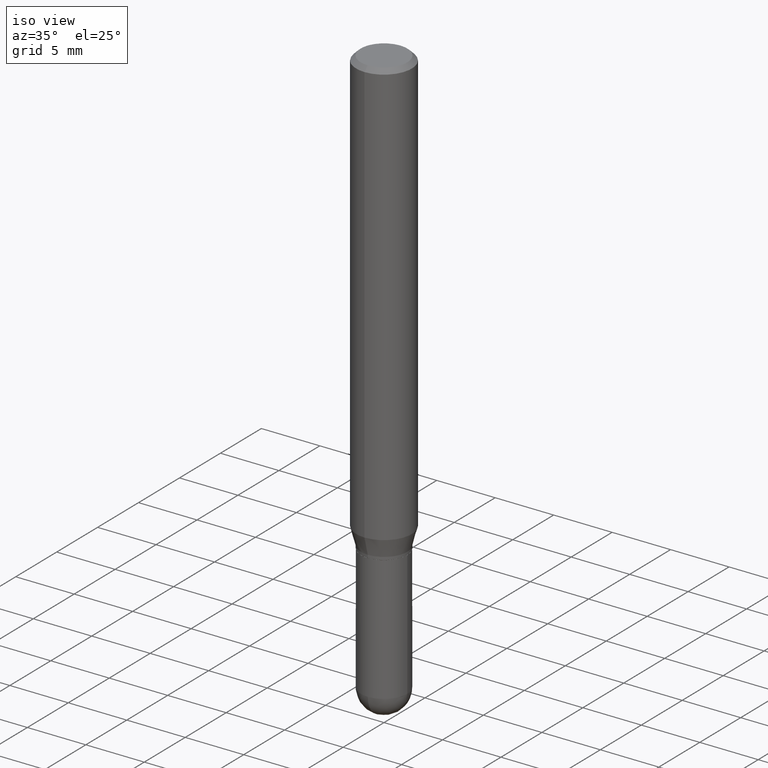
[diagram: clean part render]
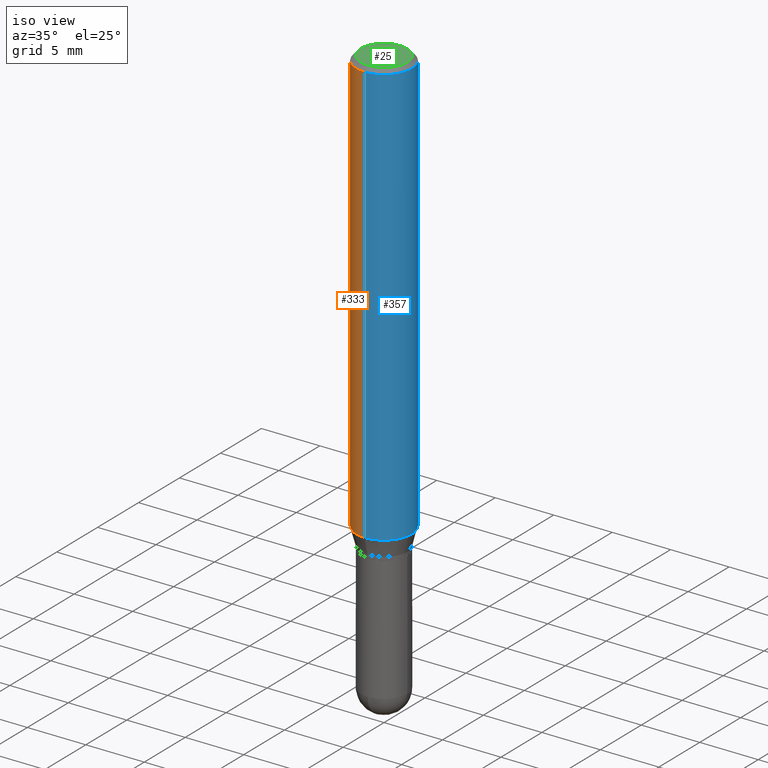
[diagram: same view with three faces highlighted in distinct colors, each labeled with its STEP entity id]
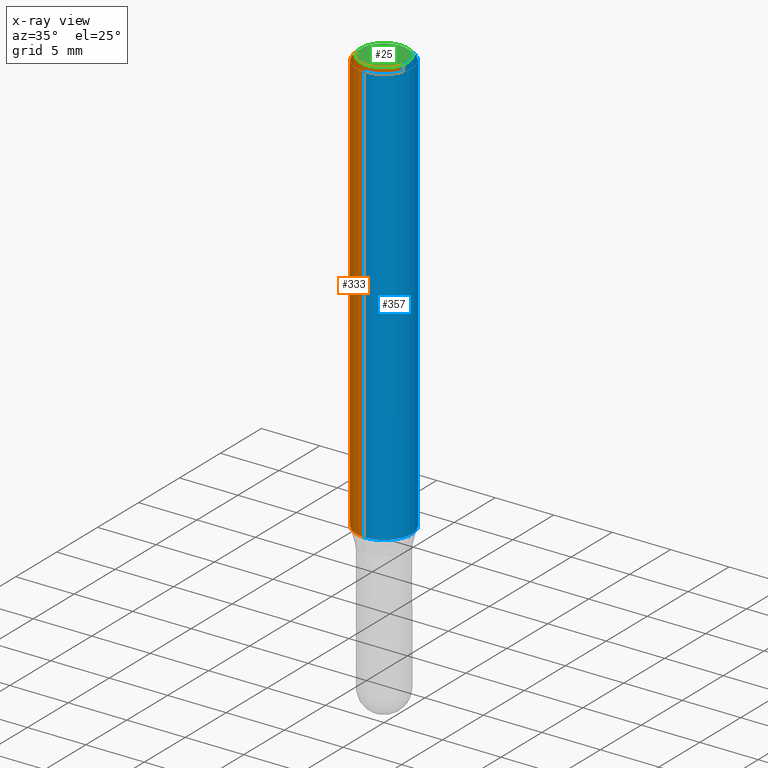
[diagram: x-ray of the same camera — body ghosted, the three highlighted faces saturated]
A machine part, iso view with three faces highlighted in distinct colors.
The next image is the same camera in x-ray (body ghosted, the three faces saturated) — at least one of them is partly hidden behind the body in this view.
Their STEP definitions:

[orange] entity #333 — the highlighted cylindrical surface (edge-blend (fillet) strip) has radius 2.3813 mm, axis along (-0, 0, 1).
#6 = DIRECTION ( 'NONE',  ( -6.982962677686265922E-15, -1.000000000000000000, 2.913971193241880372E-15 ) ) ;
#9 = VERTEX_POINT ( 'NONE', #450 ) ;
#19 = EDGE_CURVE ( 'NONE', #39, #9, #479, .T. ) ;
#22 = CARTESIAN_POINT ( 'NONE',  ( -6.546527510330523012E-16, -0.09375000000000500988, -1.431593404861545515 ) ) ;
#28 = AXIS2_PLACEMENT_3D ( 'NONE', #108, #106, #345 ) ;
#31 = CARTESIAN_POINT ( 'NONE',  ( 3.667533844320509501E-31, -5.238180576981294836E-17, -0.01499999999999997863 ) ) ;
#34 = AXIS2_PLACEMENT_3D ( 'NONE', #379, #186, #6 ) ;
#39 = VERTEX_POINT ( 'NONE', #240 ) ;
#44 = ORIENTED_EDGE ( 'NONE', *, *, #203, .F. ) ;
#64 = DIRECTION ( 'NONE',  ( -2.445022562880343100E-29, 3.492120384654201603E-15, 1.000000000000000000 ) ) ;
#106 = DIRECTION ( 'NONE',  ( -2.445022562880343100E-29, 3.492120384654201603E-15, 1.000000000000000000 ) ) ;
#108 = CARTESIAN_POINT ( 'NONE',  ( 0.000000000000000000, 0.000000000000000000, 0.000000000000000000 ) ) ;
#110 = EDGE_LOOP ( 'NONE', ( #512, #475, #289, #44 ) ) ;
#115 = VERTEX_POINT ( 'NONE', #22 ) ;
#127 = CIRCLE ( 'NONE', #253, 0.09375000000000001388 ) ;
#151 = FACE_OUTER_BOUND ( 'NONE', #110, .T. ) ;
#174 = DIRECTION ( 'NONE',  ( -6.982962677686265922E-15, -1.000000000000000000, 3.483106191921935160E-15 ) ) ;
#183 = VERTEX_POINT ( 'NONE', #493 ) ;
#186 = DIRECTION ( 'NONE',  ( -2.445022562880343100E-29, 3.492120384654201603E-15, 1.000000000000000000 ) ) ;
#196 = CYLINDRICAL_SURFACE ( 'NONE', #28, 0.09375000000000001388 ) ;
#203 = EDGE_CURVE ( 'NONE', #9, #183, #127, .T. ) ;
#234 = CIRCLE ( 'NONE', #34, 0.09375000000000001388 ) ;
#237 = CARTESIAN_POINT ( 'NONE',  ( -6.546527510330875041E-16, -0.09375000000000001388, 3.273862860613314496E-16 ) ) ;
#240 = CARTESIAN_POINT ( 'NONE',  ( 6.661338147751288313E-16, 0.09374999999999500400, -1.431593404861545960 ) ) ;
#241 = EDGE_CURVE ( 'NONE', #39, #115, #234, .T. ) ;
#253 = AXIS2_PLACEMENT_3D ( 'NONE', #31, #64, #174 ) ;
#284 = DIRECTION ( 'NONE',  ( -2.445022562880342820E-29, 3.492120384654201603E-15, 1.000000000000000000 ) ) ;
#285 = DIRECTION ( 'NONE',  ( -2.445022562880342820E-29, 3.492120384654201603E-15, 1.000000000000000000 ) ) ;
#289 = ORIENTED_EDGE ( 'NONE', *, *, #480, .T. ) ;
#291 = CARTESIAN_POINT ( 'NONE',  ( 6.661338147750938256E-16, 0.09375000000000001388, -3.273862860613314496E-16 ) ) ;
#333 = ADVANCED_FACE ( 'NONE', ( #151 ), #196, .T. ) ;
#345 = DIRECTION ( 'NONE',  ( -6.982962677686265922E-15, -1.000000000000000000, 3.492120384654201603E-15 ) ) ;
#379 = CARTESIAN_POINT ( 'NONE',  ( 3.500278175757173363E-29, -4.999296511653519155E-15, -1.431593404861545737 ) ) ;
#436 = VECTOR ( 'NONE', #284, 39.37007874015748143 ) ;
#440 = LINE ( 'NONE', #237, #436 ) ;
#450 = CARTESIAN_POINT ( 'NONE',  ( 6.661338147751291272E-16, 0.09374999999999995837, -0.01500000000000030476 ) ) ;
#475 = ORIENTED_EDGE ( 'NONE', *, *, #241, .T. ) ;
#479 = LINE ( 'NONE', #291, #502 ) ;
#480 = EDGE_CURVE ( 'NONE', #115, #183, #440, .T. ) ;
#493 = CARTESIAN_POINT ( 'NONE',  ( -6.546527510330871097E-16, -0.09375000000000005551, -0.01499999999999965250 ) ) ;
#502 = VECTOR ( 'NONE', #285, 39.37007874015748143 ) ;
#512 = ORIENTED_EDGE ( 'NONE', *, *, #19, .F. ) ;

[blue] entity #357 — the highlighted cylindrical surface (edge-blend (fillet) strip) has radius 2.3813 mm, axis along (-0, 0, 1).
#4 = DIRECTION ( 'NONE',  ( -2.445022562880343100E-29, 3.492120384654201603E-15, 1.000000000000000000 ) ) ;
#9 = VERTEX_POINT ( 'NONE', #450 ) ;
#19 = EDGE_CURVE ( 'NONE', #39, #9, #479, .T. ) ;
#22 = CARTESIAN_POINT ( 'NONE',  ( -6.546527510330523012E-16, -0.09375000000000500988, -1.431593404861545515 ) ) ;
#39 = VERTEX_POINT ( 'NONE', #240 ) ;
#68 = DIRECTION ( 'NONE',  ( -2.445022562880343100E-29, 3.492120384654201603E-15, 1.000000000000000000 ) ) ;
#86 = AXIS2_PLACEMENT_3D ( 'NONE', #230, #68, #193 ) ;
#115 = VERTEX_POINT ( 'NONE', #22 ) ;
#117 = FACE_OUTER_BOUND ( 'NONE', #359, .T. ) ;
#136 = AXIS2_PLACEMENT_3D ( 'NONE', #423, #266, #429 ) ;
#147 = ORIENTED_EDGE ( 'NONE', *, *, #480, .F. ) ;
#159 = CIRCLE ( 'NONE', #319, 0.09375000000000001388 ) ;
#183 = VERTEX_POINT ( 'NONE', #493 ) ;
#193 = DIRECTION ( 'NONE',  ( -6.982962677686265922E-15, -1.000000000000000000, 3.492120384654201603E-15 ) ) ;
#230 = CARTESIAN_POINT ( 'NONE',  ( 0.000000000000000000, 0.000000000000000000, 0.000000000000000000 ) ) ;
#233 = CARTESIAN_POINT ( 'NONE',  ( 3.500278175757173363E-29, -4.999296511653519155E-15, -1.431593404861545737 ) ) ;
#237 = CARTESIAN_POINT ( 'NONE',  ( -6.546527510330875041E-16, -0.09375000000000001388, 3.273862860613314496E-16 ) ) ;
#240 = CARTESIAN_POINT ( 'NONE',  ( 6.661338147751288313E-16, 0.09374999999999500400, -1.431593404861545960 ) ) ;
#266 = DIRECTION ( 'NONE',  ( -2.445022562880343100E-29, 3.492120384654201603E-15, 1.000000000000000000 ) ) ;
#269 = CIRCLE ( 'NONE', #136, 0.09375000000000001388 ) ;
#273 = ORIENTED_EDGE ( 'NONE', *, *, #340, .F. ) ;
#284 = DIRECTION ( 'NONE',  ( -2.445022562880342820E-29, 3.492120384654201603E-15, 1.000000000000000000 ) ) ;
#285 = DIRECTION ( 'NONE',  ( -2.445022562880342820E-29, 3.492120384654201603E-15, 1.000000000000000000 ) ) ;
#291 = CARTESIAN_POINT ( 'NONE',  ( 6.661338147750938256E-16, 0.09375000000000001388, -3.273862860613314496E-16 ) ) ;
#305 = EDGE_CURVE ( 'NONE', #115, #39, #159, .T. ) ;
#309 = ORIENTED_EDGE ( 'NONE', *, *, #19, .T. ) ;
#311 = CYLINDRICAL_SURFACE ( 'NONE', #86, 0.09375000000000001388 ) ;
#319 = AXIS2_PLACEMENT_3D ( 'NONE', #233, #4, #434 ) ;
#340 = EDGE_CURVE ( 'NONE', #183, #9, #269, .T. ) ;
#357 = ADVANCED_FACE ( 'NONE', ( #117 ), #311, .T. ) ;
#359 = EDGE_LOOP ( 'NONE', ( #392, #309, #273, #147 ) ) ;
#392 = ORIENTED_EDGE ( 'NONE', *, *, #305, .T. ) ;
#423 = CARTESIAN_POINT ( 'NONE',  ( 3.667533844320509501E-31, -5.238180576981294836E-17, -0.01499999999999997863 ) ) ;
#429 = DIRECTION ( 'NONE',  ( -6.982962677686265922E-15, -1.000000000000000000, 3.483106191921935160E-15 ) ) ;
#434 = DIRECTION ( 'NONE',  ( -6.982962677686265922E-15, -1.000000000000000000, 2.913971193241880372E-15 ) ) ;
#436 = VECTOR ( 'NONE', #284, 39.37007874015748143 ) ;
#440 = LINE ( 'NONE', #237, #436 ) ;
#450 = CARTESIAN_POINT ( 'NONE',  ( 6.661338147751291272E-16, 0.09374999999999995837, -0.01500000000000030476 ) ) ;
#479 = LINE ( 'NONE', #291, #502 ) ;
#480 = EDGE_CURVE ( 'NONE', #115, #183, #440, .T. ) ;
#493 = CARTESIAN_POINT ( 'NONE',  ( -6.546527510330871097E-16, -0.09375000000000005551, -0.01499999999999965250 ) ) ;
#502 = VECTOR ( 'NONE', #285, 39.37007874015748143 ) ;

[green] entity #25 — the highlighted planar face has unit normal (0, -0, -1).
#16 = CARTESIAN_POINT ( 'NONE',  ( 5.499083108677934443E-16, 0.07875000000000001443, -2.640559158870569216E-16 ) ) ;
#25 = ADVANCED_FACE ( 'NONE', ( #131 ), #325, .F. ) ;
#76 = DIRECTION ( 'NONE',  ( -2.445022562880343100E-29, 3.492120384654201603E-15, 1.000000000000000000 ) ) ;
#83 = DIRECTION ( 'NONE',  ( 6.982962677686265922E-15, 1.000000000000000000, -3.492120384654201603E-15 ) ) ;
#116 = EDGE_CURVE ( 'NONE', #483, #152, #201, .T. ) ;
#131 = FACE_OUTER_BOUND ( 'NONE', #362, .T. ) ;
#152 = VERTEX_POINT ( 'NONE', #255 ) ;
#201 = CIRCLE ( 'NONE', #378, 0.07875000000000001443 ) ;
#225 = AXIS2_PLACEMENT_3D ( 'NONE', #16, #486, #83 ) ;
#255 = CARTESIAN_POINT ( 'NONE',  ( 6.022805309504406221E-16, 0.07875000000000001443, -2.531073514825954590E-16 ) ) ;
#265 = DIRECTION ( 'NONE',  ( -2.445022562880343100E-29, 3.492120384654201603E-15, 1.000000000000000000 ) ) ;
#274 = CARTESIAN_POINT ( 'NONE',  ( -5.353897400011380051E-46, 7.646740987903862261E-32, 2.189712880892295595E-17 ) ) ;
#300 = CARTESIAN_POINT ( 'NONE',  ( -5.353897400011380051E-46, 7.646740987903862261E-32, 2.189712880892295595E-17 ) ) ;
#325 = PLANE ( 'NONE',  #225 ) ;
#344 = CIRCLE ( 'NONE', #504, 0.07875000000000001443 ) ;
#355 = DIRECTION ( 'NONE',  ( -6.982962677686264344E-15, -1.000000000000000000, 3.492120384654201209E-15 ) ) ;
#362 = EDGE_LOOP ( 'NONE', ( #471, #408 ) ) ;
#363 = CARTESIAN_POINT ( 'NONE',  ( -5.917179523077944868E-16, -0.07875000000000001443, 2.969016091004413093E-16 ) ) ;
#378 = AXIS2_PLACEMENT_3D ( 'NONE', #300, #265, #458 ) ;
#388 = EDGE_CURVE ( 'NONE', #152, #483, #344, .T. ) ;
#408 = ORIENTED_EDGE ( 'NONE', *, *, #116, .T. ) ;
#458 = DIRECTION ( 'NONE',  ( -6.982962677686264344E-15, -1.000000000000000000, 3.492120384654201209E-15 ) ) ;
#471 = ORIENTED_EDGE ( 'NONE', *, *, #388, .T. ) ;
#483 = VERTEX_POINT ( 'NONE', #363 ) ;
#486 = DIRECTION ( 'NONE',  ( 2.445022562880342820E-29, -3.492120384654201603E-15, -1.000000000000000000 ) ) ;
#504 = AXIS2_PLACEMENT_3D ( 'NONE', #274, #76, #355 ) ;